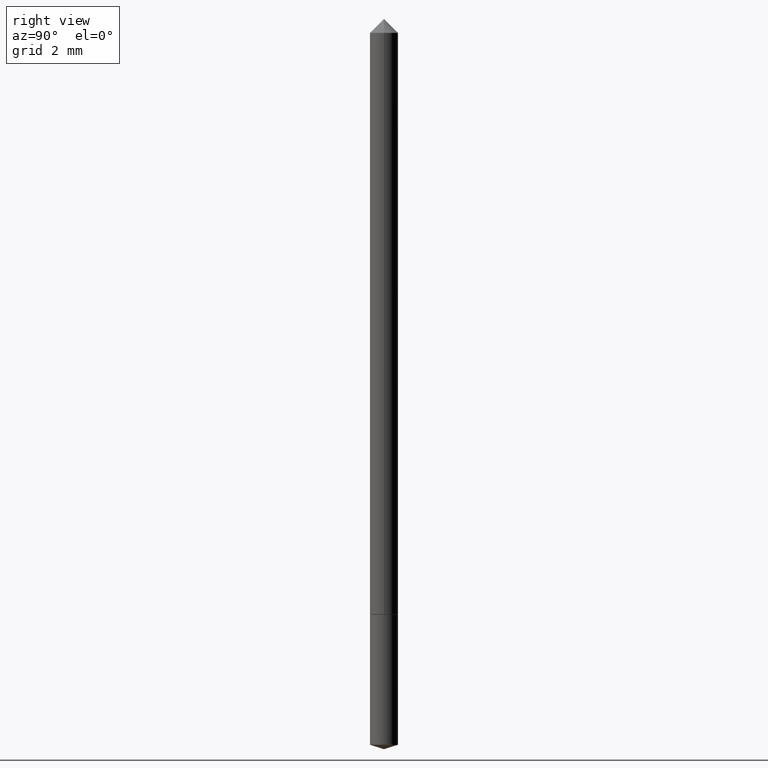
[diagram: clean part render]
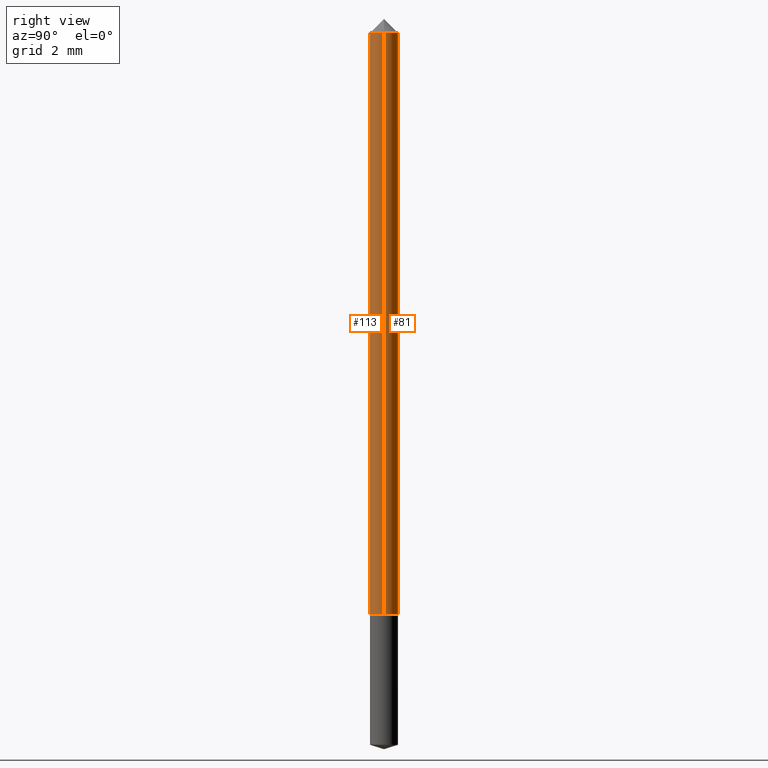
[diagram: same view with one multi-face feature highlighted, each face labeled with its STEP entity id]
A machine part, right view. The highlighted faces form ONE feature: a constant-radius fillet chain: 2 tangent blend faces with common blend radius 0.475 mm. The faces share edges in the B-rep.
Their STEP definitions:
[1] entity #113 (Cylinder):
#12 = EDGE_LOOP ( 'NONE', ( #283, #273, #198, #108 ) ) ;
#18 = CYLINDRICAL_SURFACE ( 'NONE', #29, 0.01870000000000005339 ) ;
#21 = CARTESIAN_POINT ( 'NONE',  ( 0.01870000000000009849, -2.940176435439812668E-15, -0.8046999999999998598 ) ) ;
#29 = AXIS2_PLACEMENT_3D ( 'NONE', #140, #136, #323 ) ;
#36 = CARTESIAN_POINT ( 'NONE',  ( -0.01870000000000005339, 1.328714915871391141E-16, -9.198408618776699725E-31 ) ) ;
#42 = DIRECTION ( 'NONE',  ( 1.000000000000000000, -6.982962677686265133E-15, 0.000000000000000000 ) ) ;
#57 = VERTEX_POINT ( 'NONE', #127 ) ;
#104 = CARTESIAN_POINT ( 'NONE',  ( -0.01870000000000000481, -1.326480421015823222E-15, -0.03125000000000020123 ) ) ;
#108 = ORIENTED_EDGE ( 'NONE', *, *, #117, .F. ) ;
#113 = ADVANCED_FACE ( 'NONE', ( #349 ), #18, .T. ) ;
#116 = VERTEX_POINT ( 'NONE', #21 ) ;
#117 = EDGE_CURVE ( 'NONE', #206, #267, #188, .T. ) ;
#127 = CARTESIAN_POINT ( 'NONE',  ( -0.01870000000000009849, -2.676723541779939195E-15, -0.8046999999999998598 ) ) ;
#135 = CARTESIAN_POINT ( 'NONE',  ( 1.967868748337179033E-29, -2.809595033367079073E-15, -0.8046999999999998598 ) ) ;
#136 = DIRECTION ( 'NONE',  ( -2.445468806185136597E-29, 3.491481338843145583E-15, 1.000000000000000000 ) ) ;
#140 = CARTESIAN_POINT ( 'NONE',  ( 0.000000000000000000, 0.000000000000000000, 0.000000000000000000 ) ) ;
#182 = LINE ( 'NONE', #36, #238 ) ;
#188 = CIRCLE ( 'NONE', #259, 0.01870000000000000481 ) ;
#196 = AXIS2_PLACEMENT_3D ( 'NONE', #135, #303, #42 ) ;
#198 = ORIENTED_EDGE ( 'NONE', *, *, #317, .T. ) ;
#201 = CARTESIAN_POINT ( 'NONE',  ( 7.642090019328600035E-31, -1.091087918388489897E-16, -0.03125000000000020123 ) ) ;
#206 = VERTEX_POINT ( 'NONE', #104 ) ;
#214 = CIRCLE ( 'NONE', #196, 0.01870000000000009849 ) ;
#215 = CARTESIAN_POINT ( 'NONE',  ( 0.01870000000000005339, -1.305814020727335452E-16, 9.118450570738424932E-31 ) ) ;
#229 = EDGE_CURVE ( 'NONE', #57, #116, #214, .T. ) ;
#238 = VECTOR ( 'NONE', #319, 39.37007874015748143 ) ;
#259 = AXIS2_PLACEMENT_3D ( 'NONE', #201, #305, #307 ) ;
#266 = LINE ( 'NONE', #215, #268 ) ;
#267 = VERTEX_POINT ( 'NONE', #293 ) ;
#268 = VECTOR ( 'NONE', #300, 39.37007874015748143 ) ;
#273 = ORIENTED_EDGE ( 'NONE', *, *, #229, .T. ) ;
#283 = ORIENTED_EDGE ( 'NONE', *, *, #284, .F. ) ;
#284 = EDGE_CURVE ( 'NONE', #57, #206, #182, .T. ) ;
#293 = CARTESIAN_POINT ( 'NONE',  ( 0.01870000000000000481, -2.396901939115822021E-16, -0.03125000000000020123 ) ) ;
#300 = DIRECTION ( 'NONE',  ( -2.445468806185136877E-29, 3.491481338843145188E-15, 1.000000000000000000 ) ) ;
#303 = DIRECTION ( 'NONE',  ( -2.445468806185136597E-29, 3.491481338843145583E-15, 1.000000000000000000 ) ) ;
#305 = DIRECTION ( 'NONE',  ( -2.445468806185136597E-29, 3.491481338843145583E-15, 1.000000000000000000 ) ) ;
#307 = DIRECTION ( 'NONE',  ( 1.000000000000000000, -6.982962677686266711E-15, 0.000000000000000000 ) ) ;
#317 = EDGE_CURVE ( 'NONE', #116, #267, #266, .T. ) ;
#319 = DIRECTION ( 'NONE',  ( -2.445468806185136877E-29, 3.491481338843145188E-15, 1.000000000000000000 ) ) ;
#323 = DIRECTION ( 'NONE',  ( 1.000000000000000000, -6.982962677686265922E-15, 4.876176775795935232E-29 ) ) ;
#349 = FACE_OUTER_BOUND ( 'NONE', #12, .T. ) ;
[2] entity #81 (Cylinder):
#13 = CARTESIAN_POINT ( 'NONE',  ( 0.000000000000000000, 0.000000000000000000, 0.000000000000000000 ) ) ;
#21 = CARTESIAN_POINT ( 'NONE',  ( 0.01870000000000009849, -2.940176435439812668E-15, -0.8046999999999998598 ) ) ;
#23 = AXIS2_PLACEMENT_3D ( 'NONE', #130, #95, #213 ) ;
#32 = CARTESIAN_POINT ( 'NONE',  ( 7.642090019328600035E-31, -1.091087918388489897E-16, -0.03125000000000020123 ) ) ;
#36 = CARTESIAN_POINT ( 'NONE',  ( -0.01870000000000005339, 1.328714915871391141E-16, -9.198408618776699725E-31 ) ) ;
#57 = VERTEX_POINT ( 'NONE', #127 ) ;
#62 = CIRCLE ( 'NONE', #364, 0.01870000000000000481 ) ;
#69 = CIRCLE ( 'NONE', #23, 0.01870000000000009849 ) ;
#81 = ADVANCED_FACE ( 'NONE', ( #250 ), #217, .T. ) ;
#95 = DIRECTION ( 'NONE',  ( -2.445468806185136597E-29, 3.491481338843145583E-15, 1.000000000000000000 ) ) ;
#99 = DIRECTION ( 'NONE',  ( 1.000000000000000000, -6.982962677686266711E-15, 0.000000000000000000 ) ) ;
#104 = CARTESIAN_POINT ( 'NONE',  ( -0.01870000000000000481, -1.326480421015823222E-15, -0.03125000000000020123 ) ) ;
#112 = ORIENTED_EDGE ( 'NONE', *, *, #309, .F. ) ;
#116 = VERTEX_POINT ( 'NONE', #21 ) ;
#127 = CARTESIAN_POINT ( 'NONE',  ( -0.01870000000000009849, -2.676723541779939195E-15, -0.8046999999999998598 ) ) ;
#130 = CARTESIAN_POINT ( 'NONE',  ( 1.967868748337179033E-29, -2.809595033367079073E-15, -0.8046999999999998598 ) ) ;
#152 = ORIENTED_EDGE ( 'NONE', *, *, #290, .T. ) ;
#172 = DIRECTION ( 'NONE',  ( -2.445468806185136597E-29, 3.491481338843145583E-15, 1.000000000000000000 ) ) ;
#182 = LINE ( 'NONE', #36, #238 ) ;
#206 = VERTEX_POINT ( 'NONE', #104 ) ;
#213 = DIRECTION ( 'NONE',  ( 1.000000000000000000, -6.982962677686265133E-15, 0.000000000000000000 ) ) ;
#215 = CARTESIAN_POINT ( 'NONE',  ( 0.01870000000000005339, -1.305814020727335452E-16, 9.118450570738424932E-31 ) ) ;
#217 = CYLINDRICAL_SURFACE ( 'NONE', #285, 0.01870000000000005339 ) ;
#238 = VECTOR ( 'NONE', #319, 39.37007874015748143 ) ;
#250 = FACE_OUTER_BOUND ( 'NONE', #311, .T. ) ;
#266 = LINE ( 'NONE', #215, #268 ) ;
#267 = VERTEX_POINT ( 'NONE', #293 ) ;
#268 = VECTOR ( 'NONE', #300, 39.37007874015748143 ) ;
#274 = DIRECTION ( 'NONE',  ( 1.000000000000000000, -6.982962677686265922E-15, 4.876176775795935232E-29 ) ) ;
#284 = EDGE_CURVE ( 'NONE', #57, #206, #182, .T. ) ;
#285 = AXIS2_PLACEMENT_3D ( 'NONE', #13, #172, #274 ) ;
#290 = EDGE_CURVE ( 'NONE', #116, #57, #69, .T. ) ;
#293 = CARTESIAN_POINT ( 'NONE',  ( 0.01870000000000000481, -2.396901939115822021E-16, -0.03125000000000020123 ) ) ;
#300 = DIRECTION ( 'NONE',  ( -2.445468806185136877E-29, 3.491481338843145188E-15, 1.000000000000000000 ) ) ;
#309 = EDGE_CURVE ( 'NONE', #267, #206, #62, .T. ) ;
#311 = EDGE_LOOP ( 'NONE', ( #152, #353, #112, #361 ) ) ;
#317 = EDGE_CURVE ( 'NONE', #116, #267, #266, .T. ) ;
#319 = DIRECTION ( 'NONE',  ( -2.445468806185136877E-29, 3.491481338843145188E-15, 1.000000000000000000 ) ) ;
#344 = DIRECTION ( 'NONE',  ( -2.445468806185136597E-29, 3.491481338843145583E-15, 1.000000000000000000 ) ) ;
#353 = ORIENTED_EDGE ( 'NONE', *, *, #284, .T. ) ;
#361 = ORIENTED_EDGE ( 'NONE', *, *, #317, .F. ) ;
#364 = AXIS2_PLACEMENT_3D ( 'NONE', #32, #344, #99 ) ;